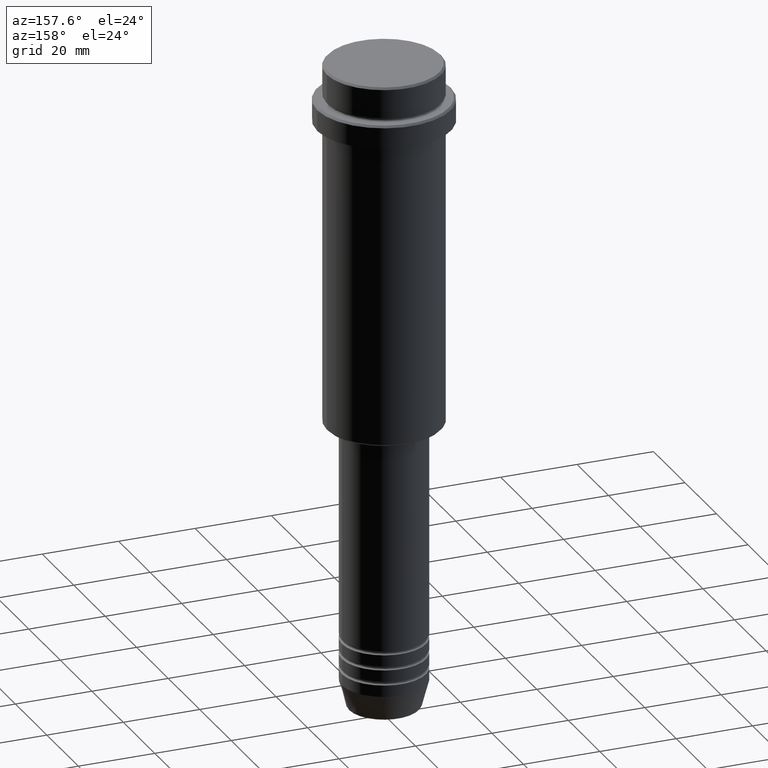
[diagram: clean part render]
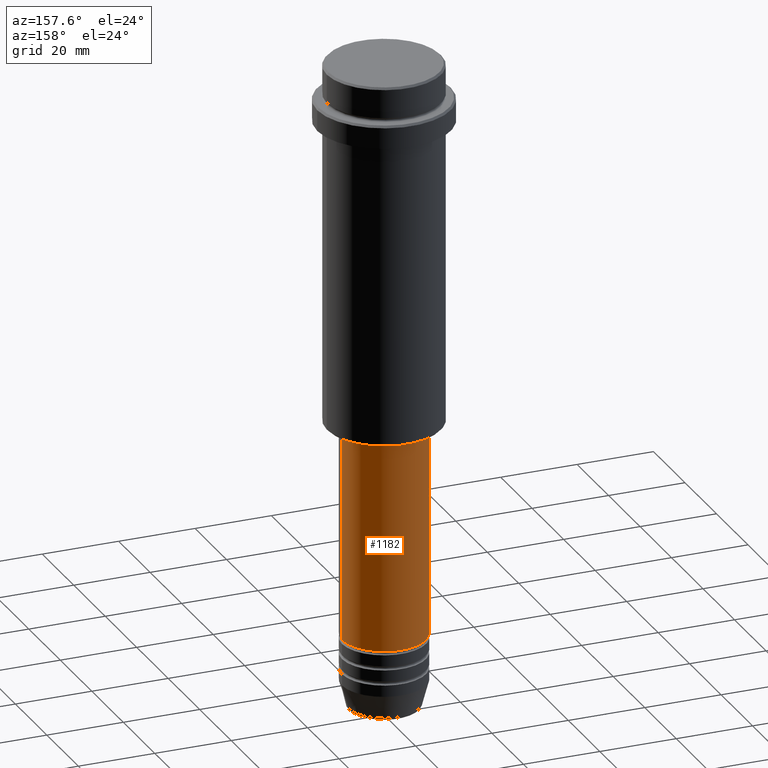
[diagram: same view with one face highlighted and labeled with its STEP entity id]
A machine part, auxiliary view. The second image highlights one B-rep face of the part: STEP entity #1182.
In plain terms, the highlighted cylindrical surface (partial cylindrical patch) has radius 11 mm, axis along (-0, -0, 1).
Its self-contained STEP definition (entity closure, byte-faithful):
#4 = DIRECTION ( 'NONE',  ( -0.000000000000000000, -0.000000000000000000, 1.000000000000000000 ) ) ;
#22 = LINE ( 'NONE', #455, #60 ) ;
#26 = CARTESIAN_POINT ( 'NONE',  ( -10.99999999999999822, 1.347111479062088207E-15, -96.00000000000000000 ) ) ;
#60 = VECTOR ( 'NONE', #1330, 1000.000000000000000 ) ;
#81 = AXIS2_PLACEMENT_3D ( 'NONE', #206, #104, #428 ) ;
#91 = VERTEX_POINT ( 'NONE', #26 ) ;
#104 = DIRECTION ( 'NONE',  ( -0.000000000000000000, -0.000000000000000000, 1.000000000000000000 ) ) ;
#117 = VERTEX_POINT ( 'NONE', #272 ) ;
#206 = CARTESIAN_POINT ( 'NONE',  ( 0.000000000000000000, 0.000000000000000000, -96.00000000000000000 ) ) ;
#241 = EDGE_LOOP ( 'NONE', ( #1375, #878, #505, #548 ) ) ;
#249 = EDGE_CURVE ( 'NONE', #1189, #91, #481, .T. ) ;
#272 = CARTESIAN_POINT ( 'NONE',  ( 10.99999999999999822, 0.000000000000000000, -96.00000000000000000 ) ) ;
#310 = AXIS2_PLACEMENT_3D ( 'NONE', #759, #1325, #340 ) ;
#340 = DIRECTION ( 'NONE',  ( 1.000000000000000000, 0.000000000000000000, 0.000000000000000000 ) ) ;
#428 = DIRECTION ( 'NONE',  ( 1.000000000000000000, 0.000000000000000000, 0.000000000000000000 ) ) ;
#455 = CARTESIAN_POINT ( 'NONE',  ( 11.00000000000000000, 0.000000000000000000, 0.000000000000000000 ) ) ;
#481 = LINE ( 'NONE', #1219, #818 ) ;
#505 = ORIENTED_EDGE ( 'NONE', *, *, #784, .F. ) ;
#547 = CYLINDRICAL_SURFACE ( 'NONE', #310, 11.00000000000000000 ) ;
#548 = ORIENTED_EDGE ( 'NONE', *, *, #1270, .F. ) ;
#672 = DIRECTION ( 'NONE',  ( -0.000000000000000000, -0.000000000000000000, 1.000000000000000000 ) ) ;
#702 = CIRCLE ( 'NONE', #81, 10.99999999999999822 ) ;
#759 = CARTESIAN_POINT ( 'NONE',  ( 0.000000000000000000, 0.000000000000000000, 0.000000000000000000 ) ) ;
#781 = CARTESIAN_POINT ( 'NONE',  ( -11.00000000000000000, 1.347111479062088405E-15, -150.9999999999999147 ) ) ;
#784 = EDGE_CURVE ( 'NONE', #117, #91, #702, .T. ) ;
#818 = VECTOR ( 'NONE', #4, 1000.000000000000000 ) ;
#878 = ORIENTED_EDGE ( 'NONE', *, *, #249, .T. ) ;
#885 = FACE_OUTER_BOUND ( 'NONE', #241, .T. ) ;
#984 = VERTEX_POINT ( 'NONE', #1161 ) ;
#1004 = CIRCLE ( 'NONE', #1363, 11.00000000000000000 ) ;
#1005 = CARTESIAN_POINT ( 'NONE',  ( 0.000000000000000000, 0.000000000000000000, -150.9999999999999147 ) ) ;
#1110 = DIRECTION ( 'NONE',  ( 1.000000000000000000, 0.000000000000000000, 0.000000000000000000 ) ) ;
#1161 = CARTESIAN_POINT ( 'NONE',  ( 11.00000000000000000, 0.000000000000000000, -150.9999999999999147 ) ) ;
#1182 = ADVANCED_FACE ( 'NONE', ( #885 ), #547, .T. ) ;
#1189 = VERTEX_POINT ( 'NONE', #781 ) ;
#1219 = CARTESIAN_POINT ( 'NONE',  ( -11.00000000000000000, 1.347111479062088405E-15, 0.000000000000000000 ) ) ;
#1270 = EDGE_CURVE ( 'NONE', #984, #117, #22, .T. ) ;
#1287 = EDGE_CURVE ( 'NONE', #984, #1189, #1004, .T. ) ;
#1325 = DIRECTION ( 'NONE',  ( -0.000000000000000000, -0.000000000000000000, 1.000000000000000000 ) ) ;
#1330 = DIRECTION ( 'NONE',  ( -0.000000000000000000, -0.000000000000000000, 1.000000000000000000 ) ) ;
#1363 = AXIS2_PLACEMENT_3D ( 'NONE', #1005, #672, #1110 ) ;
#1375 = ORIENTED_EDGE ( 'NONE', *, *, #1287, .T. ) ;